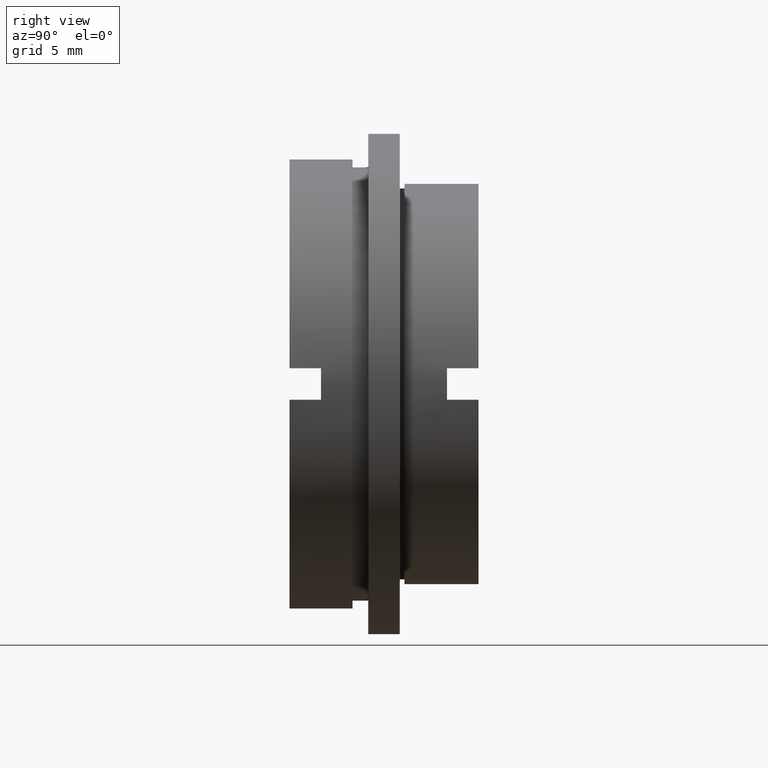
[diagram: clean part render]
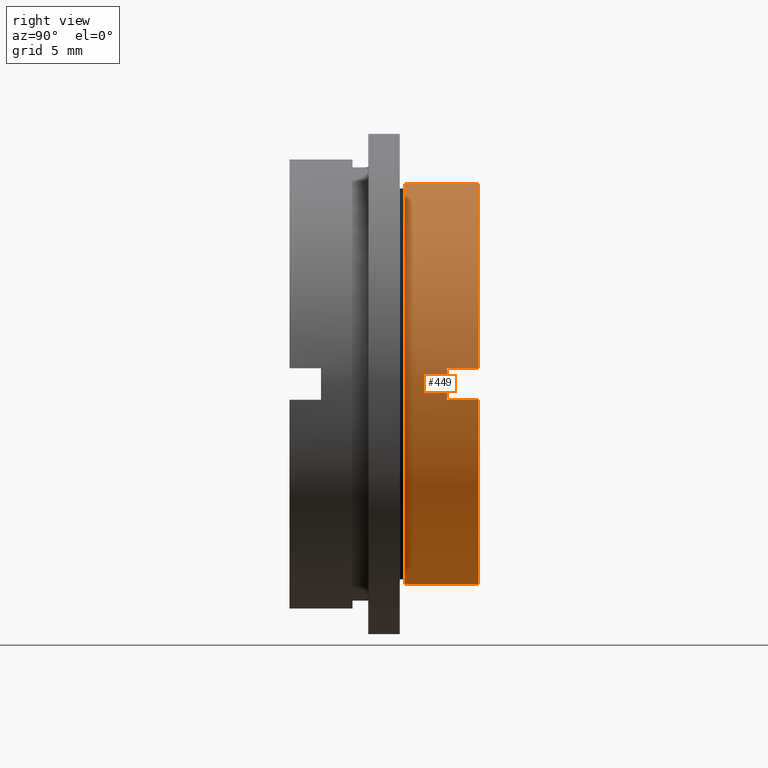
[diagram: same view with one face highlighted and labeled with its STEP entity id]
A machine part, right view. The second image highlights one B-rep face of the part: STEP entity #449.
In plain terms, the highlighted cylindrical surface (partial cylindrical patch) has radius 12.7 mm, axis along (-0, 1, -0).
Its self-contained STEP definition (entity closure, byte-faithful):
#6 = VECTOR ( 'NONE', #793, 1000.000000000000000 ) ;
#23 = VERTEX_POINT ( 'NONE', #1336 ) ;
#48 = DIRECTION ( 'NONE',  ( 0.0000000000000000000, 0.0000000000000000000, 1.000000000000000000 ) ) ;
#55 = CIRCLE ( 'NONE', #894, 12.69999999999999800 ) ;
#62 = VECTOR ( 'NONE', #215, 1000.000000000000000 ) ;
#71 = CARTESIAN_POINT ( 'NONE',  ( 0.0000000000000000000, 12.00000000000000000, 12.69999999999999800 ) ) ;
#83 = EDGE_CURVE ( 'NONE', #290, #462, #419, .T. ) ;
#90 = ORIENTED_EDGE ( 'NONE', *, *, #1266, .F. ) ;
#116 = DIRECTION ( 'NONE',  ( 0.0000000000000000000, 0.0000000000000000000, 1.000000000000000000 ) ) ;
#120 = VERTEX_POINT ( 'NONE', #177 ) ;
#177 = CARTESIAN_POINT ( 'NONE',  ( 12.66056870760551300, 12.00000000000000000, 1.000000000000001600 ) ) ;
#179 = DIRECTION ( 'NONE',  ( 0.0000000000000000000, -1.000000000000000000, 0.0000000000000000000 ) ) ;
#183 = CARTESIAN_POINT ( 'NONE',  ( 12.66056870760551300, 22.67749945107591400, 1.000000000000002900 ) ) ;
#186 = LINE ( 'NONE', #183, #292 ) ;
#191 = ORIENTED_EDGE ( 'NONE', *, *, #1203, .F. ) ;
#201 = LINE ( 'NONE', #493, #6 ) ;
#215 = DIRECTION ( 'NONE',  ( -0.0000000000000000000, 1.000000000000000000, -0.0000000000000000000 ) ) ;
#216 = DIRECTION ( 'NONE',  ( -0.0000000000000000000, 1.000000000000000000, -0.0000000000000000000 ) ) ;
#239 = DIRECTION ( 'NONE',  ( -1.332267629550187800E-014, 0.0000000000000000000, -1.000000000000000000 ) ) ;
#241 = VECTOR ( 'NONE', #216, 1000.000000000000000 ) ;
#244 = DIRECTION ( 'NONE',  ( 0.0000000000000000000, 1.000000000000000000, 0.0000000000000000000 ) ) ;
#249 = LINE ( 'NONE', #864, #62 ) ;
#290 = VERTEX_POINT ( 'NONE', #293 ) ;
#292 = VECTOR ( 'NONE', #179, 1000.000000000000000 ) ;
#293 = CARTESIAN_POINT ( 'NONE',  ( 0.0000000000000000000, 7.300000000000000700, 12.69999999999999800 ) ) ;
#298 = CARTESIAN_POINT ( 'NONE',  ( 0.0000000000000000000, 10.00000000000000000, 0.0000000000000000000 ) ) ;
#306 = EDGE_CURVE ( 'NONE', #462, #120, #1039, .T. ) ;
#326 = ORIENTED_EDGE ( 'NONE', *, *, #1076, .F. ) ;
#330 = CARTESIAN_POINT ( 'NONE',  ( 12.66056870760551300, 12.00000000000000000, -0.9999999999999978900 ) ) ;
#332 = CIRCLE ( 'NONE', #438, 12.69999999999999800 ) ;
#337 = ORIENTED_EDGE ( 'NONE', *, *, #83, .F. ) ;
#344 = AXIS2_PLACEMENT_3D ( 'NONE', #1278, #1102, #116 ) ;
#346 = CYLINDRICAL_SURFACE ( 'NONE', #344, 12.69999999999999800 ) ;
#373 = VERTEX_POINT ( 'NONE', #1012 ) ;
#377 = CARTESIAN_POINT ( 'NONE',  ( 0.0000000000000000000, 12.00000000000000000, 0.0000000000000000000 ) ) ;
#386 = VERTEX_POINT ( 'NONE', #821 ) ;
#394 = DIRECTION ( 'NONE',  ( -0.0000000000000000000, 1.000000000000000000, -0.0000000000000000000 ) ) ;
#409 = ORIENTED_EDGE ( 'NONE', *, *, #857, .F. ) ;
#412 = VERTEX_POINT ( 'NONE', #965 ) ;
#419 = LINE ( 'NONE', #1295, #241 ) ;
#426 = AXIS2_PLACEMENT_3D ( 'NONE', #495, #915, #984 ) ;
#433 = DIRECTION ( 'NONE',  ( -0.0000000000000000000, 1.000000000000000000, -0.0000000000000000000 ) ) ;
#438 = AXIS2_PLACEMENT_3D ( 'NONE', #1050, #433, #729 ) ;
#447 = EDGE_LOOP ( 'NONE', ( #672, #766, #191, #409, #90, #326, #856, #337 ) ) ;
#449 = ADVANCED_FACE ( 'NONE', ( #1273 ), #346, .T. ) ;
#462 = VERTEX_POINT ( 'NONE', #71 ) ;
#476 = CIRCLE ( 'NONE', #1110, 12.69999999999999800 ) ;
#493 = CARTESIAN_POINT ( 'NONE',  ( 12.66056870760551200, 22.67749945107591400, -1.000000000000000000 ) ) ;
#495 = CARTESIAN_POINT ( 'NONE',  ( 0.0000000000000000000, 12.00000000000000000, 0.0000000000000000000 ) ) ;
#672 = ORIENTED_EDGE ( 'NONE', *, *, #758, .T. ) ;
#729 = DIRECTION ( 'NONE',  ( 0.0000000000000000000, 0.0000000000000000000, 1.000000000000000000 ) ) ;
#758 = EDGE_CURVE ( 'NONE', #290, #23, #332, .T. ) ;
#766 = ORIENTED_EDGE ( 'NONE', *, *, #1134, .T. ) ;
#793 = DIRECTION ( 'NONE',  ( -0.0000000000000000000, 1.000000000000000000, -0.0000000000000000000 ) ) ;
#821 = CARTESIAN_POINT ( 'NONE',  ( 12.66056870760551300, 10.00000000000000000, -0.9999999999999974500 ) ) ;
#856 = ORIENTED_EDGE ( 'NONE', *, *, #306, .F. ) ;
#857 = EDGE_CURVE ( 'NONE', #386, #919, #201, .T. ) ;
#864 = CARTESIAN_POINT ( 'NONE',  ( 1.555301434917138200E-015, 22.67749945107591400, -12.69999999999999800 ) ) ;
#894 = AXIS2_PLACEMENT_3D ( 'NONE', #298, #244, #239 ) ;
#915 = DIRECTION ( 'NONE',  ( -0.0000000000000000000, 1.000000000000000000, -0.0000000000000000000 ) ) ;
#919 = VERTEX_POINT ( 'NONE', #330 ) ;
#965 = CARTESIAN_POINT ( 'NONE',  ( 12.66056870760551300, 10.00000000000000000, 1.000000000000001300 ) ) ;
#984 = DIRECTION ( 'NONE',  ( 0.0000000000000000000, 0.0000000000000000000, 1.000000000000000000 ) ) ;
#1012 = CARTESIAN_POINT ( 'NONE',  ( 1.555301434917138200E-015, 12.00000000000000000, -12.69999999999999800 ) ) ;
#1039 = CIRCLE ( 'NONE', #426, 12.69999999999999800 ) ;
#1050 = CARTESIAN_POINT ( 'NONE',  ( 0.0000000000000000000, 7.300000000000000700, 0.0000000000000000000 ) ) ;
#1076 = EDGE_CURVE ( 'NONE', #120, #412, #186, .T. ) ;
#1102 = DIRECTION ( 'NONE',  ( -0.0000000000000000000, 1.000000000000000000, -0.0000000000000000000 ) ) ;
#1110 = AXIS2_PLACEMENT_3D ( 'NONE', #377, #394, #48 ) ;
#1134 = EDGE_CURVE ( 'NONE', #23, #373, #249, .T. ) ;
#1203 = EDGE_CURVE ( 'NONE', #919, #373, #476, .T. ) ;
#1266 = EDGE_CURVE ( 'NONE', #412, #386, #55, .T. ) ;
#1273 = FACE_OUTER_BOUND ( 'NONE', #447, .T. ) ;
#1278 = CARTESIAN_POINT ( 'NONE',  ( 0.0000000000000000000, 22.67749945107591400, 0.0000000000000000000 ) ) ;
#1295 = CARTESIAN_POINT ( 'NONE',  ( 0.0000000000000000000, 22.67749945107591400, 12.69999999999999800 ) ) ;
#1336 = CARTESIAN_POINT ( 'NONE',  ( 1.555301434917138200E-015, 7.300000000000000700, -12.69999999999999800 ) ) ;